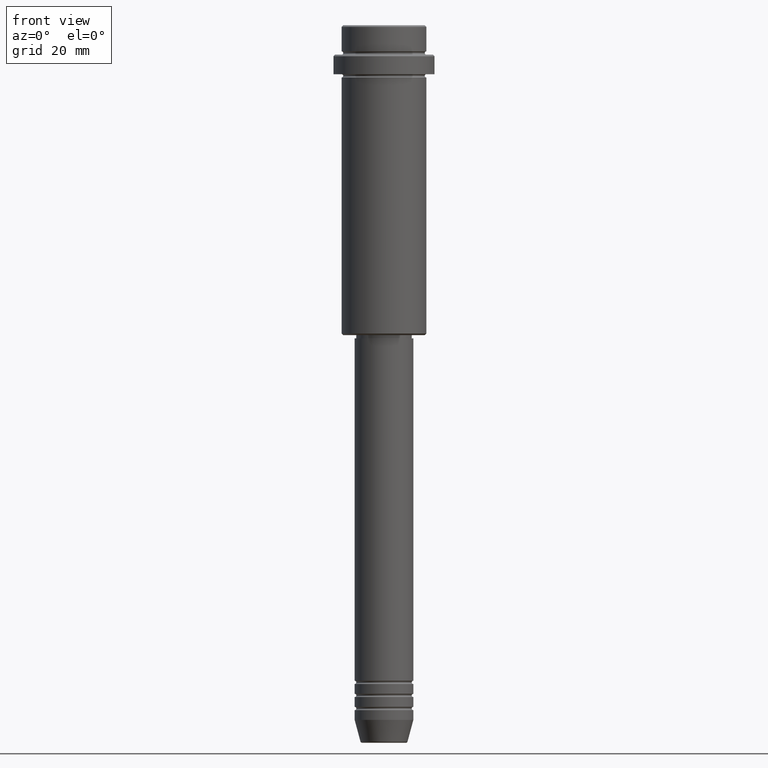
[diagram: clean part render]
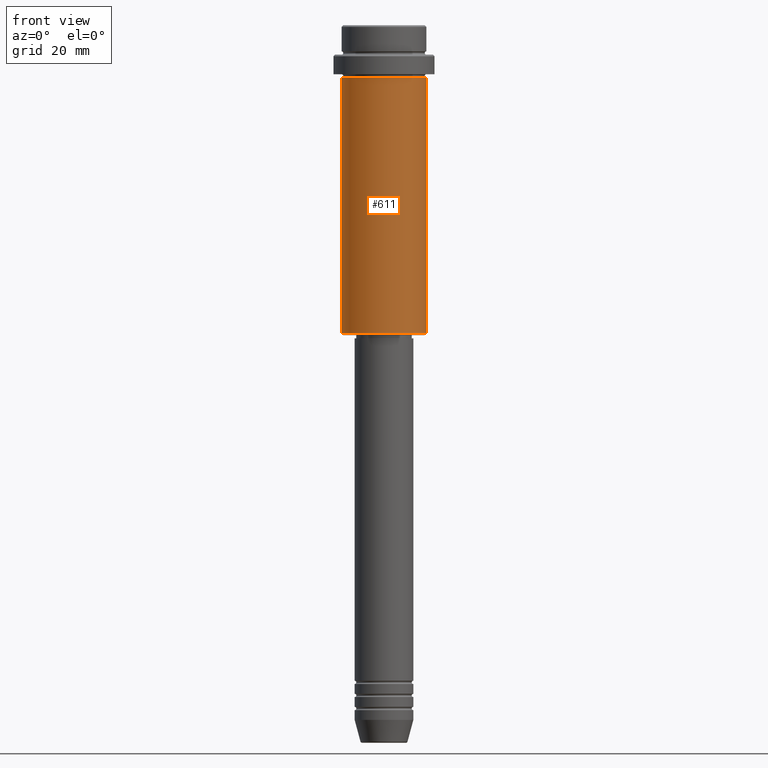
[diagram: same view with one face highlighted and labeled with its STEP entity id]
A machine part, front view. The second image highlights one B-rep face of the part: STEP entity #611.
In plain terms, the highlighted cylindrical surface (partial cylindrical patch) has radius 13 mm, axis along (-0, -0, 1).
Its self-contained STEP definition (entity closure, byte-faithful):
#29 = LINE ( 'NONE', #43, #1191 ) ;
#43 = CARTESIAN_POINT ( 'NONE',  ( -13.00000000000000000, 1.592040838891559095E-15, 0.000000000000000000 ) ) ;
#54 = CARTESIAN_POINT ( 'NONE',  ( 0.000000000000000000, 0.000000000000000000, 0.000000000000000000 ) ) ;
#55 = VECTOR ( 'NONE', #212, 1000.000000000000000 ) ;
#80 = CARTESIAN_POINT ( 'NONE',  ( 0.000000000000000000, 0.000000000000000000, -16.00000000000000000 ) ) ;
#95 = VERTEX_POINT ( 'NONE', #1307 ) ;
#146 = VERTEX_POINT ( 'NONE', #1259 ) ;
#212 = DIRECTION ( 'NONE',  ( -0.000000000000000000, -0.000000000000000000, 1.000000000000000000 ) ) ;
#264 = CARTESIAN_POINT ( 'NONE',  ( 13.00000000000000000, 0.000000000000000000, -94.50000000000000000 ) ) ;
#354 = CYLINDRICAL_SURFACE ( 'NONE', #1147, 13.00000000000000000 ) ;
#396 = EDGE_CURVE ( 'NONE', #1140, #146, #690, .T. ) ;
#431 = LINE ( 'NONE', #867, #55 ) ;
#463 = DIRECTION ( 'NONE',  ( -0.000000000000000000, -0.000000000000000000, 1.000000000000000000 ) ) ;
#488 = DIRECTION ( 'NONE',  ( 1.000000000000000000, 0.000000000000000000, 0.000000000000000000 ) ) ;
#505 = CARTESIAN_POINT ( 'NONE',  ( 0.000000000000000000, 0.000000000000000000, -94.50000000000000000 ) ) ;
#611 = ADVANCED_FACE ( 'NONE', ( #1016 ), #354, .T. ) ;
#645 = DIRECTION ( 'NONE',  ( -0.000000000000000000, -0.000000000000000000, 1.000000000000000000 ) ) ;
#650 = DIRECTION ( 'NONE',  ( -1.000000000000000000, 0.000000000000000000, 0.000000000000000000 ) ) ;
#666 = VERTEX_POINT ( 'NONE', #264 ) ;
#673 = DIRECTION ( 'NONE',  ( -0.000000000000000000, -0.000000000000000000, 1.000000000000000000 ) ) ;
#690 = CIRCLE ( 'NONE', #799, 13.00000000000000000 ) ;
#719 = AXIS2_PLACEMENT_3D ( 'NONE', #505, #673, #650 ) ;
#799 = AXIS2_PLACEMENT_3D ( 'NONE', #80, #645, #1268 ) ;
#838 = ORIENTED_EDGE ( 'NONE', *, *, #1160, .F. ) ;
#847 = ORIENTED_EDGE ( 'NONE', *, *, #1015, .T. ) ;
#867 = CARTESIAN_POINT ( 'NONE',  ( 13.00000000000000000, 0.000000000000000000, 0.000000000000000000 ) ) ;
#881 = EDGE_CURVE ( 'NONE', #95, #666, #1304, .T. ) ;
#1015 = EDGE_CURVE ( 'NONE', #666, #146, #431, .T. ) ;
#1016 = FACE_OUTER_BOUND ( 'NONE', #1391, .T. ) ;
#1023 = DIRECTION ( 'NONE',  ( -0.000000000000000000, -0.000000000000000000, 1.000000000000000000 ) ) ;
#1140 = VERTEX_POINT ( 'NONE', #1358 ) ;
#1147 = AXIS2_PLACEMENT_3D ( 'NONE', #54, #1023, #488 ) ;
#1160 = EDGE_CURVE ( 'NONE', #95, #1140, #29, .T. ) ;
#1191 = VECTOR ( 'NONE', #463, 1000.000000000000000 ) ;
#1254 = ORIENTED_EDGE ( 'NONE', *, *, #881, .T. ) ;
#1259 = CARTESIAN_POINT ( 'NONE',  ( 13.00000000000000000, 0.000000000000000000, -16.00000000000000000 ) ) ;
#1268 = DIRECTION ( 'NONE',  ( 1.000000000000000000, 0.000000000000000000, 0.000000000000000000 ) ) ;
#1304 = CIRCLE ( 'NONE', #719, 13.00000000000000000 ) ;
#1307 = CARTESIAN_POINT ( 'NONE',  ( -13.00000000000000000, 1.592040838891559095E-15, -94.50000000000000000 ) ) ;
#1356 = ORIENTED_EDGE ( 'NONE', *, *, #396, .F. ) ;
#1358 = CARTESIAN_POINT ( 'NONE',  ( -13.00000000000000000, 1.592040838891559095E-15, -16.00000000000000000 ) ) ;
#1391 = EDGE_LOOP ( 'NONE', ( #838, #1254, #847, #1356 ) ) ;